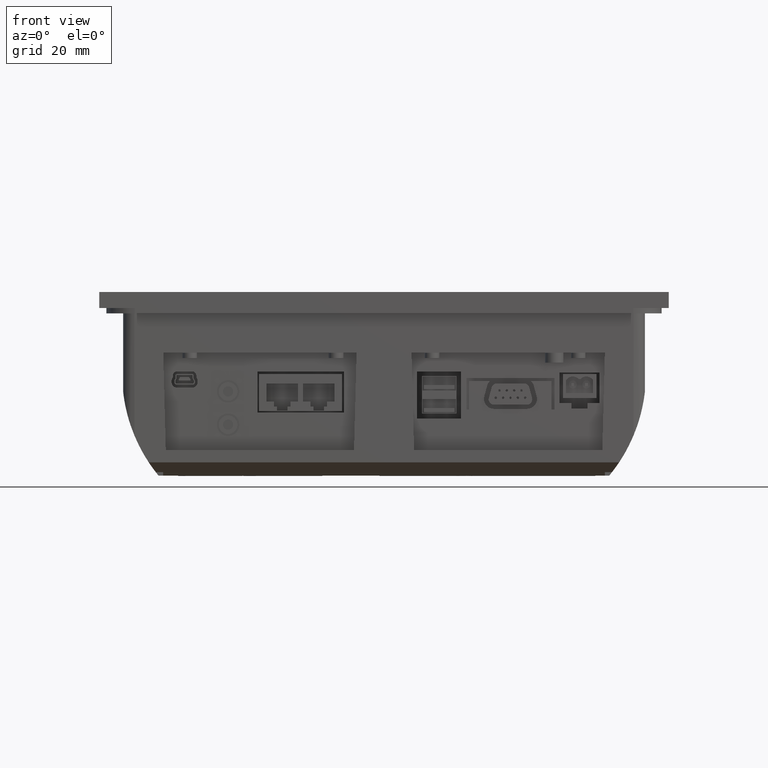
[diagram: clean part render]
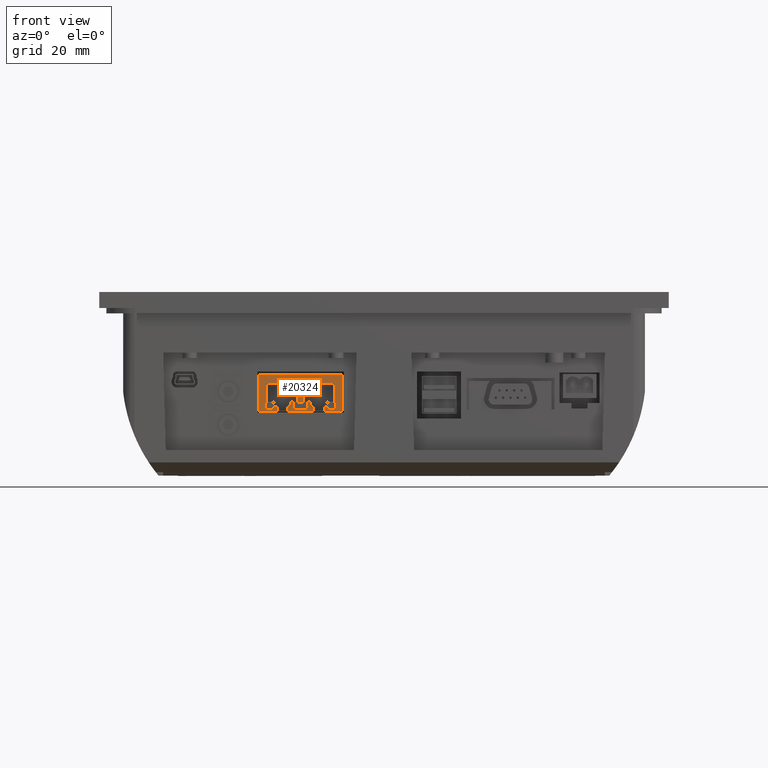
[diagram: same view with one face highlighted and labeled with its STEP entity id]
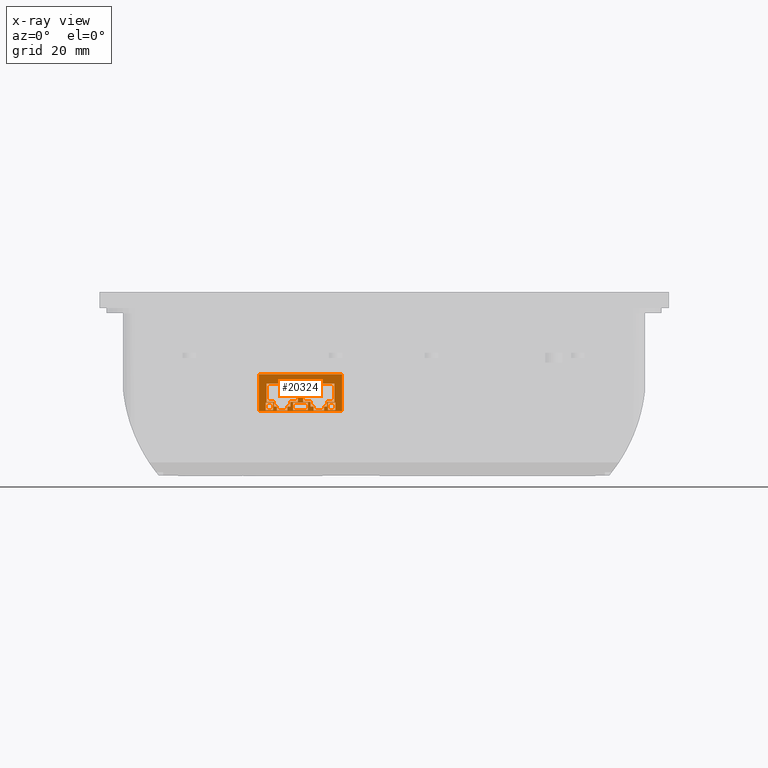
[diagram: x-ray of the same camera — body ghosted, the highlighted face saturated]
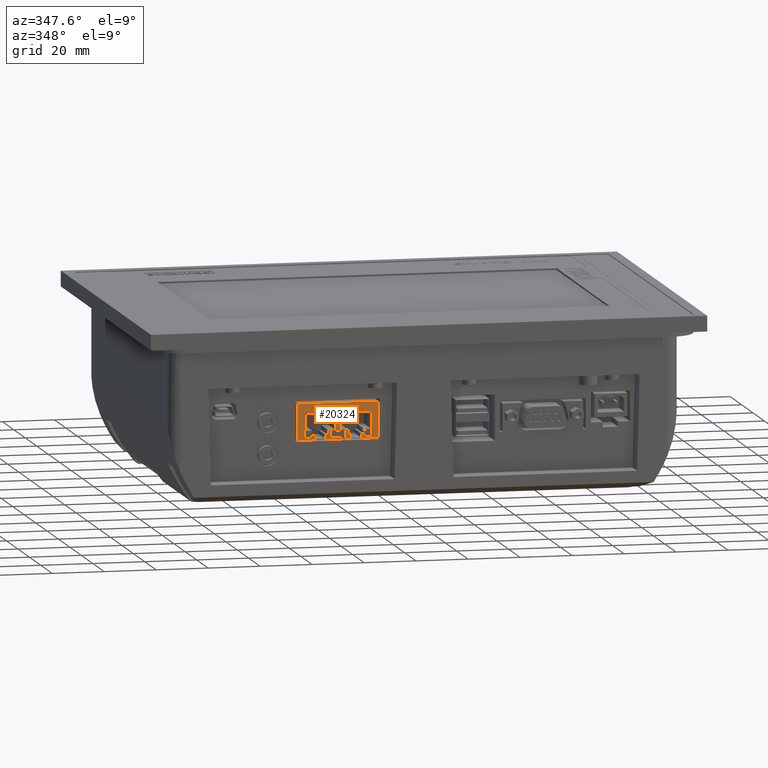
[diagram: same view with one face highlighted and labeled with its STEP entity id]
A machine part, front view. The second image highlights one B-rep face of the part: STEP entity #20324.
The next image is the same camera in x-ray: the body ghosted, the highlighted face saturated — about 0% of this face is hidden behind the body in this view.
A second angle (auxiliary view) of the same face is appended — the face is thin or edge-on in the first view.
In plain terms, the highlighted planar face has unit normal (0, -1, 0).
Its self-contained STEP definition (entity closure, byte-faithful):
#2454=LINE('',#68005,#7839);
#2455=LINE('',#68008,#7840);
#2456=LINE('',#68010,#7841);
#2457=LINE('',#68012,#7842);
#2458=LINE('',#68013,#7843);
#2459=LINE('',#68016,#7844);
#2460=LINE('',#68018,#7845);
#2461=LINE('',#68020,#7846);
#2462=LINE('',#68021,#7847);
#2463=LINE('',#68024,#7848);
#2464=LINE('',#68026,#7849);
#2465=LINE('',#68028,#7850);
#2466=LINE('',#68029,#7851);
#2467=LINE('',#68032,#7852);
#2468=LINE('',#68034,#7853);
#2469=LINE('',#68036,#7854);
#2470=LINE('',#68038,#7855);
#2471=LINE('',#68040,#7856);
#2472=LINE('',#68042,#7857);
#2473=LINE('',#68044,#7858);
#2474=LINE('',#68046,#7859);
#2475=LINE('',#68048,#7860);
#2476=LINE('',#68050,#7861);
#2477=LINE('',#68052,#7862);
#2478=LINE('',#68053,#7863);
#2479=LINE('',#68056,#7864);
#2480=LINE('',#68058,#7865);
#2481=LINE('',#68060,#7866);
#2482=LINE('',#68061,#7867);
#2483=LINE('',#68064,#7868);
#2484=LINE('',#68066,#7869);
#2485=LINE('',#68068,#7870);
#2486=LINE('',#68070,#7871);
#2487=LINE('',#68072,#7872);
#2488=LINE('',#68074,#7873);
#2489=LINE('',#68076,#7874);
#2490=LINE('',#68078,#7875);
#2491=LINE('',#68080,#7876);
#2492=LINE('',#68082,#7877);
#2493=LINE('',#68084,#7878);
#7839=VECTOR('',#56144,1.);
#7840=VECTOR('',#56145,1.);
#7841=VECTOR('',#56146,1.);
#7842=VECTOR('',#56147,1.);
#7843=VECTOR('',#56148,1.);
#7844=VECTOR('',#56149,1.);
#7845=VECTOR('',#56150,1.);
#7846=VECTOR('',#56151,1.);
#7847=VECTOR('',#56152,1.);
#7848=VECTOR('',#56153,1.);
#7849=VECTOR('',#56154,1.);
#7850=VECTOR('',#56155,1.);
#7851=VECTOR('',#56156,1.);
#7852=VECTOR('',#56157,1.);
#7853=VECTOR('',#56158,1.);
#7854=VECTOR('',#56159,1.);
#7855=VECTOR('',#56160,1.);
#7856=VECTOR('',#56161,1.);
#7857=VECTOR('',#56162,1.);
#7858=VECTOR('',#56163,1.);
#7859=VECTOR('',#56164,1.);
#7860=VECTOR('',#56165,1.);
#7861=VECTOR('',#56166,1.);
#7862=VECTOR('',#56167,1.);
#7863=VECTOR('',#56168,1.);
#7864=VECTOR('',#56169,1.);
#7865=VECTOR('',#56170,1.);
#7866=VECTOR('',#56171,1.);
#7867=VECTOR('',#56172,1.);
#7868=VECTOR('',#56173,1.);
#7869=VECTOR('',#56174,1.);
#7870=VECTOR('',#56175,1.);
#7871=VECTOR('',#56176,1.);
#7872=VECTOR('',#56177,1.);
#7873=VECTOR('',#56178,1.);
#7874=VECTOR('',#56179,1.);
#7875=VECTOR('',#56180,1.);
#7876=VECTOR('',#56181,1.);
#7877=VECTOR('',#56182,1.);
#7878=VECTOR('',#56183,1.);
#15414=PLANE('',#51154);
#20324=ADVANCED_FACE('',(#22776,#22777,#22778,#22779,#22780,#22781),#15414,
 .T.);
#22776=FACE_BOUND('',#23878,.T.);
#22777=FACE_BOUND('',#23879,.T.);
#22778=FACE_BOUND('',#23880,.T.);
#22779=FACE_BOUND('',#23881,.T.);
#22780=FACE_BOUND('',#23882,.T.);
#22781=FACE_BOUND('',#23883,.T.);
#23878=EDGE_LOOP('',(#29243,#29244,#29245,#29246));
#23879=EDGE_LOOP('',(#29247,#29248,#29249,#29250));
#23880=EDGE_LOOP('',(#29251,#29252,#29253,#29254));
#23881=EDGE_LOOP('',(#29255,#29256,#29257,#29258,#29259,#29260,#29261,#29262,
#29263,#29264,#29265,#29266));
#23882=EDGE_LOOP('',(#29267,#29268,#29269,#29270));
#23883=EDGE_LOOP('',(#29271,#29272,#29273,#29274,#29275,#29276,#29277,#29278,
#29279,#29280,#29281,#29282));
#29243=ORIENTED_EDGE('',*,*,#44874,.F.);
#29244=ORIENTED_EDGE('',*,*,#44875,.F.);
#29245=ORIENTED_EDGE('',*,*,#44876,.F.);
#29246=ORIENTED_EDGE('',*,*,#44877,.F.);
#29247=ORIENTED_EDGE('',*,*,#44878,.F.);
#29248=ORIENTED_EDGE('',*,*,#44879,.F.);
#29249=ORIENTED_EDGE('',*,*,#44880,.F.);
#29250=ORIENTED_EDGE('',*,*,#44881,.F.);
#29251=ORIENTED_EDGE('',*,*,#44882,.F.);
#29252=ORIENTED_EDGE('',*,*,#44883,.F.);
#29253=ORIENTED_EDGE('',*,*,#44884,.F.);
#29254=ORIENTED_EDGE('',*,*,#44885,.F.);
#29255=ORIENTED_EDGE('',*,*,#44886,.T.);
#29256=ORIENTED_EDGE('',*,*,#44887,.T.);
#29257=ORIENTED_EDGE('',*,*,#44888,.T.);
#29258=ORIENTED_EDGE('',*,*,#44889,.T.);
#29259=ORIENTED_EDGE('',*,*,#44890,.T.);
#29260=ORIENTED_EDGE('',*,*,#44891,.T.);
#29261=ORIENTED_EDGE('',*,*,#44892,.T.);
#29262=ORIENTED_EDGE('',*,*,#44893,.T.);
#29263=ORIENTED_EDGE('',*,*,#44894,.T.);
#29264=ORIENTED_EDGE('',*,*,#44895,.T.);
#29265=ORIENTED_EDGE('',*,*,#44896,.T.);
#29266=ORIENTED_EDGE('',*,*,#44897,.T.);
#29267=ORIENTED_EDGE('',*,*,#44898,.T.);
#29268=ORIENTED_EDGE('',*,*,#44899,.T.);
#29269=ORIENTED_EDGE('',*,*,#44900,.T.);
#29270=ORIENTED_EDGE('',*,*,#44901,.T.);
#29271=ORIENTED_EDGE('',*,*,#44902,.T.);
#29272=ORIENTED_EDGE('',*,*,#44903,.T.);
#29273=ORIENTED_EDGE('',*,*,#44904,.T.);
#29274=ORIENTED_EDGE('',*,*,#44905,.T.);
#29275=ORIENTED_EDGE('',*,*,#44906,.T.);
#29276=ORIENTED_EDGE('',*,*,#44907,.T.);
#29277=ORIENTED_EDGE('',*,*,#44908,.T.);
#29278=ORIENTED_EDGE('',*,*,#44909,.T.);
#29279=ORIENTED_EDGE('',*,*,#44910,.T.);
#29280=ORIENTED_EDGE('',*,*,#44911,.T.);
#29281=ORIENTED_EDGE('',*,*,#44912,.T.);
#29282=ORIENTED_EDGE('',*,*,#44913,.T.);
#40062=VERTEX_POINT('',#68006);
#40063=VERTEX_POINT('',#68007);
#40064=VERTEX_POINT('',#68009);
#40065=VERTEX_POINT('',#68011);
#40066=VERTEX_POINT('',#68014);
#40067=VERTEX_POINT('',#68015);
#40068=VERTEX_POINT('',#68017);
#40069=VERTEX_POINT('',#68019);
#40070=VERTEX_POINT('',#68022);
#40071=VERTEX_POINT('',#68023);
#40072=VERTEX_POINT('',#68025);
#40073=VERTEX_POINT('',#68027);
#40074=VERTEX_POINT('',#68030);
#40075=VERTEX_POINT('',#68031);
#40076=VERTEX_POINT('',#68033);
#40077=VERTEX_POINT('',#68035);
#40078=VERTEX_POINT('',#68037);
#40079=VERTEX_POINT('',#68039);
#40080=VERTEX_POINT('',#68041);
#40081=VERTEX_POINT('',#68043);
#40082=VERTEX_POINT('',#68045);
#40083=VERTEX_POINT('',#68047);
#40084=VERTEX_POINT('',#68049);
#40085=VERTEX_POINT('',#68051);
#40086=VERTEX_POINT('',#68054);
#40087=VERTEX_POINT('',#68055);
#40088=VERTEX_POINT('',#68057);
#40089=VERTEX_POINT('',#68059);
#40090=VERTEX_POINT('',#68062);
#40091=VERTEX_POINT('',#68063);
#40092=VERTEX_POINT('',#68065);
#40093=VERTEX_POINT('',#68067);
#40094=VERTEX_POINT('',#68069);
#40095=VERTEX_POINT('',#68071);
#40096=VERTEX_POINT('',#68073);
#40097=VERTEX_POINT('',#68075);
#40098=VERTEX_POINT('',#68077);
#40099=VERTEX_POINT('',#68079);
#40100=VERTEX_POINT('',#68081);
#40101=VERTEX_POINT('',#68083);
#44874=EDGE_CURVE('',#40062,#40063,#2454,.T.);
#44875=EDGE_CURVE('',#40064,#40062,#2455,.T.);
#44876=EDGE_CURVE('',#40065,#40064,#2456,.T.);
#44877=EDGE_CURVE('',#40063,#40065,#2457,.T.);
#44878=EDGE_CURVE('',#40066,#40067,#2458,.T.);
#44879=EDGE_CURVE('',#40068,#40066,#2459,.T.);
#44880=EDGE_CURVE('',#40069,#40068,#2460,.T.);
#44881=EDGE_CURVE('',#40067,#40069,#2461,.T.);
#44882=EDGE_CURVE('',#40070,#40071,#2462,.T.);
#44883=EDGE_CURVE('',#40072,#40070,#2463,.T.);
#44884=EDGE_CURVE('',#40073,#40072,#2464,.T.);
#44885=EDGE_CURVE('',#40071,#40073,#2465,.T.);
#44886=EDGE_CURVE('',#40074,#40075,#2466,.T.);
#44887=EDGE_CURVE('',#40075,#40076,#2467,.T.);
#44888=EDGE_CURVE('',#40076,#40077,#2468,.T.);
#44889=EDGE_CURVE('',#40077,#40078,#2469,.T.);
#44890=EDGE_CURVE('',#40078,#40079,#2470,.T.);
#44891=EDGE_CURVE('',#40079,#40080,#2471,.T.);
#44892=EDGE_CURVE('',#40080,#40081,#2472,.T.);
#44893=EDGE_CURVE('',#40081,#40082,#2473,.T.);
#44894=EDGE_CURVE('',#40082,#40083,#2474,.T.);
#44895=EDGE_CURVE('',#40083,#40084,#2475,.T.);
#44896=EDGE_CURVE('',#40084,#40085,#2476,.T.);
#44897=EDGE_CURVE('',#40085,#40074,#2477,.T.);
#44898=EDGE_CURVE('',#40086,#40087,#2478,.T.);
#44899=EDGE_CURVE('',#40087,#40088,#2479,.T.);
#44900=EDGE_CURVE('',#40088,#40089,#2480,.T.);
#44901=EDGE_CURVE('',#40089,#40086,#2481,.T.);
#44902=EDGE_CURVE('',#40090,#40091,#2482,.T.);
#44903=EDGE_CURVE('',#40091,#40092,#2483,.T.);
#44904=EDGE_CURVE('',#40092,#40093,#2484,.T.);
#44905=EDGE_CURVE('',#40093,#40094,#2485,.T.);
#44906=EDGE_CURVE('',#40094,#40095,#2486,.T.);
#44907=EDGE_CURVE('',#40095,#40096,#2487,.T.);
#44908=EDGE_CURVE('',#40096,#40097,#2488,.T.);
#44909=EDGE_CURVE('',#40097,#40098,#2489,.T.);
#44910=EDGE_CURVE('',#40098,#40099,#2490,.T.);
#44911=EDGE_CURVE('',#40099,#40100,#2491,.T.);
#44912=EDGE_CURVE('',#40100,#40101,#2492,.T.);
#44913=EDGE_CURVE('',#40101,#40090,#2493,.T.);
#51154=AXIS2_PLACEMENT_3D('',#68085,#56184,#56185);
#56144=DIRECTION('',(0.,0.,-1.));
#56145=DIRECTION('',(-1.,0.,0.));
#56146=DIRECTION('',(0.,0.,1.));
#56147=DIRECTION('',(1.,0.,0.));
#56148=DIRECTION('',(0.,0.,-1.));
#56149=DIRECTION('',(-1.,0.,0.));
#56150=DIRECTION('',(0.,0.,1.));
#56151=DIRECTION('',(1.,0.,0.));
#56152=DIRECTION('',(0.,0.,-1.));
#56153=DIRECTION('',(-1.,0.,0.));
#56154=DIRECTION('',(0.,0.,1.));
#56155=DIRECTION('',(1.,0.,0.));
#56156=DIRECTION('',(0.,0.,1.));
#56157=DIRECTION('',(1.,0.,0.));
#56158=DIRECTION('',(0.,0.,-1.));
#56159=DIRECTION('',(-1.,0.,0.));
#56160=DIRECTION('',(0.,0.,-1.));
#56161=DIRECTION('',(-1.,0.,0.));
#56162=DIRECTION('',(0.,0.,-1.));
#56163=DIRECTION('',(-1.,0.,0.));
#56164=DIRECTION('',(0.,0.,1.));
#56165=DIRECTION('',(-1.,0.,0.));
#56166=DIRECTION('',(0.,0.,1.));
#56167=DIRECTION('',(-1.,0.,0.));
#56168=DIRECTION('',(0.,0.,-1.));
#56169=DIRECTION('',(1.,0.,0.));
#56170=DIRECTION('',(0.,0.,1.));
#56171=DIRECTION('',(-1.,0.,0.));
#56172=DIRECTION('',(-1.,0.,0.));
#56173=DIRECTION('',(0.,0.,1.));
#56174=DIRECTION('',(1.,0.,0.));
#56175=DIRECTION('',(0.,0.,-1.));
#56176=DIRECTION('',(-1.,0.,0.));
#56177=DIRECTION('',(0.,0.,-1.));
#56178=DIRECTION('',(-1.,0.,0.));
#56179=DIRECTION('',(0.,0.,-1.));
#56180=DIRECTION('',(-1.,0.,0.));
#56181=DIRECTION('',(0.,0.,1.));
#56182=DIRECTION('',(-1.,0.,0.));
#56183=DIRECTION('',(0.,0.,1.));
#56184=DIRECTION('',(0.,-1.,0.));
#56185=DIRECTION('',(0.,0.,-1.));
#68005=CARTESIAN_POINT('',(-44.445,-62.36459522086,-41.55));
#68006=CARTESIAN_POINT('',(-44.445,-62.36459522086,-41.55));
#68007=CARTESIAN_POINT('',(-44.445,-62.36459522086,-44.35));
#68008=CARTESIAN_POINT('',(-41.645,-62.36459522086,-41.55));
#68009=CARTESIAN_POINT('',(-41.645,-62.36459522086,-41.55));
#68010=CARTESIAN_POINT('',(-41.645,-62.36459522086,-44.35));
#68011=CARTESIAN_POINT('',(-41.645,-62.36459522086,-44.35));
#68012=CARTESIAN_POINT('',(-44.445,-62.36459522086,-44.35));
#68013=CARTESIAN_POINT('',(-34.17,-62.36459522086,-41.55));
#68014=CARTESIAN_POINT('',(-34.17,-62.36459522086,-41.55));
#68015=CARTESIAN_POINT('',(-34.17,-62.36459522086,-44.35));
#68016=CARTESIAN_POINT('',(-28.57,-62.36459522086,-41.55));
#68017=CARTESIAN_POINT('',(-28.57,-62.36459522086,-41.55));
#68018=CARTESIAN_POINT('',(-28.57,-62.36459522086,-44.35));
#68019=CARTESIAN_POINT('',(-28.57,-62.36459522086,-44.35));
#68020=CARTESIAN_POINT('',(-34.17,-62.36459522086,-44.35));
#68021=CARTESIAN_POINT('',(-21.095,-62.36459522086,-41.55));
#68022=CARTESIAN_POINT('',(-21.095,-62.36459522086,-41.55));
#68023=CARTESIAN_POINT('',(-21.095,-62.36459522086,-44.35));
#68024=CARTESIAN_POINT('',(-18.295,-62.36459522086,-41.55));
#68025=CARTESIAN_POINT('',(-18.295,-62.36459522086,-41.55));
#68026=CARTESIAN_POINT('',(-18.295,-62.36459522086,-44.35));
#68027=CARTESIAN_POINT('',(-18.295,-62.36459522086,-44.35));
#68028=CARTESIAN_POINT('',(-21.095,-62.36459522086,-44.35));
#68029=CARTESIAN_POINT('',(-30.395,-62.36459522086,-41.25));
#68030=CARTESIAN_POINT('',(-30.395,-62.36459522086,-41.25));
#68031=CARTESIAN_POINT('',(-30.395,-62.36459522086,-34.5));
#68032=CARTESIAN_POINT('',(-30.395,-62.36459522086,-34.5));
#68033=CARTESIAN_POINT('',(-18.595,-62.36459522086,-34.5));
#68034=CARTESIAN_POINT('',(-18.595,-62.36459522086,-34.5));
#68035=CARTESIAN_POINT('',(-18.595,-62.36459522086,-41.25));
#68036=CARTESIAN_POINT('',(-18.595,-62.36459522086,-41.25));
#68037=CARTESIAN_POINT('',(-21.395,-62.36459522086,-41.25));
#68038=CARTESIAN_POINT('',(-21.395,-62.36459522086,-41.25));
#68039=CARTESIAN_POINT('',(-21.395,-62.36459522086,-43.05));
#68040=CARTESIAN_POINT('',(-21.395,-62.36459522086,-43.05));
#68041=CARTESIAN_POINT('',(-22.495,-62.36459522086,-43.05));
#68042=CARTESIAN_POINT('',(-22.495,-62.36459522086,-43.05));
#68043=CARTESIAN_POINT('',(-22.495,-62.36459522086,-44.521));
#68044=CARTESIAN_POINT('',(-22.495,-62.36459522086,-44.521));
#68045=CARTESIAN_POINT('',(-26.495,-62.36459522086,-44.521));
#68046=CARTESIAN_POINT('',(-26.495,-62.36459522086,-44.521));
#68047=CARTESIAN_POINT('',(-26.495,-62.36459522086,-43.05));
#68048=CARTESIAN_POINT('',(-26.495,-62.36459522086,-43.05));
#68049=CARTESIAN_POINT('',(-27.595,-62.36459522086,-43.05));
#68050=CARTESIAN_POINT('',(-27.595,-62.36459522086,-43.05));
#68051=CARTESIAN_POINT('',(-27.595,-62.36459522086,-41.25));
#68052=CARTESIAN_POINT('',(-27.595,-62.36459522086,-41.25));
#68053=CARTESIAN_POINT('',(-46.995,-62.36459522086,-30.9));
#68054=CARTESIAN_POINT('',(-46.995,-62.36459522086,-30.9));
#68055=CARTESIAN_POINT('',(-46.995,-62.36459522086,-44.75));
#68056=CARTESIAN_POINT('',(-46.995,-62.36459522086,-44.75));
#68057=CARTESIAN_POINT('',(-15.745,-62.36459522086,-44.75));
#68058=CARTESIAN_POINT('',(-15.745,-62.36459522086,-44.75));
#68059=CARTESIAN_POINT('',(-15.745,-62.36459522086,-30.9));
#68060=CARTESIAN_POINT('',(-15.745,-62.36459522086,-30.9));
#68061=CARTESIAN_POINT('',(-41.345,-62.36459522086,-41.25));
#68062=CARTESIAN_POINT('',(-41.345,-62.36459522086,-41.25));
#68063=CARTESIAN_POINT('',(-44.145,-62.36459522086,-41.25));
#68064=CARTESIAN_POINT('',(-44.145,-62.36459522086,-41.25));
#68065=CARTESIAN_POINT('',(-44.145,-62.36459522086,-34.5));
#68066=CARTESIAN_POINT('',(-44.145,-62.36459522086,-34.5));
#68067=CARTESIAN_POINT('',(-32.345,-62.36459522086,-34.5));
#68068=CARTESIAN_POINT('',(-32.345,-62.36459522086,-34.5));
#68069=CARTESIAN_POINT('',(-32.345,-62.36459522086,-41.25));
#68070=CARTESIAN_POINT('',(-32.345,-62.36459522086,-41.25));
#68071=CARTESIAN_POINT('',(-35.145,-62.36459522086,-41.25));
#68072=CARTESIAN_POINT('',(-35.145,-62.36459522086,-41.25));
#68073=CARTESIAN_POINT('',(-35.145,-62.36459522086,-43.05));
#68074=CARTESIAN_POINT('',(-35.145,-62.36459522086,-43.05));
#68075=CARTESIAN_POINT('',(-36.245,-62.36459522086,-43.05));
#68076=CARTESIAN_POINT('',(-36.245,-62.36459522086,-43.05));
#68077=CARTESIAN_POINT('',(-36.245,-62.36459522086,-44.521));
#68078=CARTESIAN_POINT('',(-36.245,-62.36459522086,-44.521));
#68079=CARTESIAN_POINT('',(-40.245,-62.36459522086,-44.521));
#68080=CARTESIAN_POINT('',(-40.245,-62.36459522086,-44.521));
#68081=CARTESIAN_POINT('',(-40.245,-62.36459522086,-43.05));
#68082=CARTESIAN_POINT('',(-40.245,-62.36459522086,-43.05));
#68083=CARTESIAN_POINT('',(-41.345,-62.36459522086,-43.05));
#68084=CARTESIAN_POINT('',(-41.345,-62.36459522086,-43.05));
#68085=CARTESIAN_POINT('',(-46.995,-62.36459522086,-44.75));